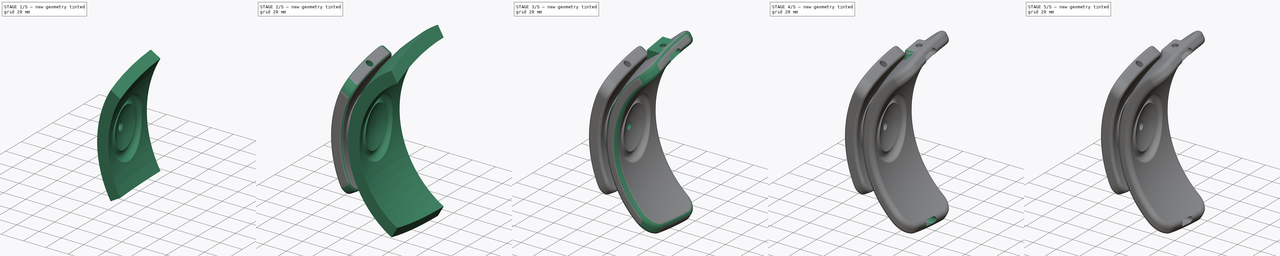
[diagram: build sequence overview — one tinted view per stage of 5, left to right]
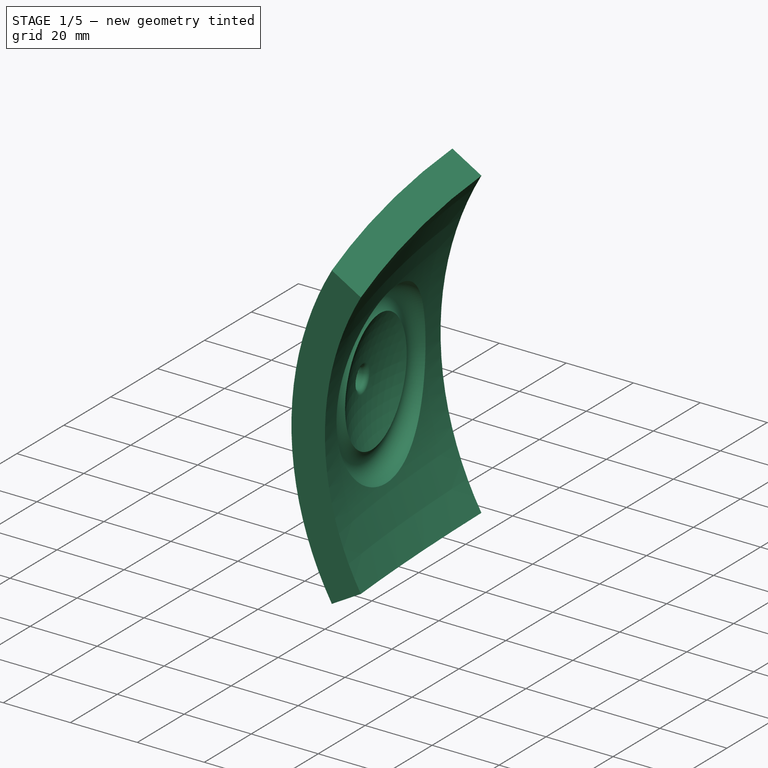
[diagram: stage 1 of 5 — iso view after this stage's code; geometry added in this stage tinted green]
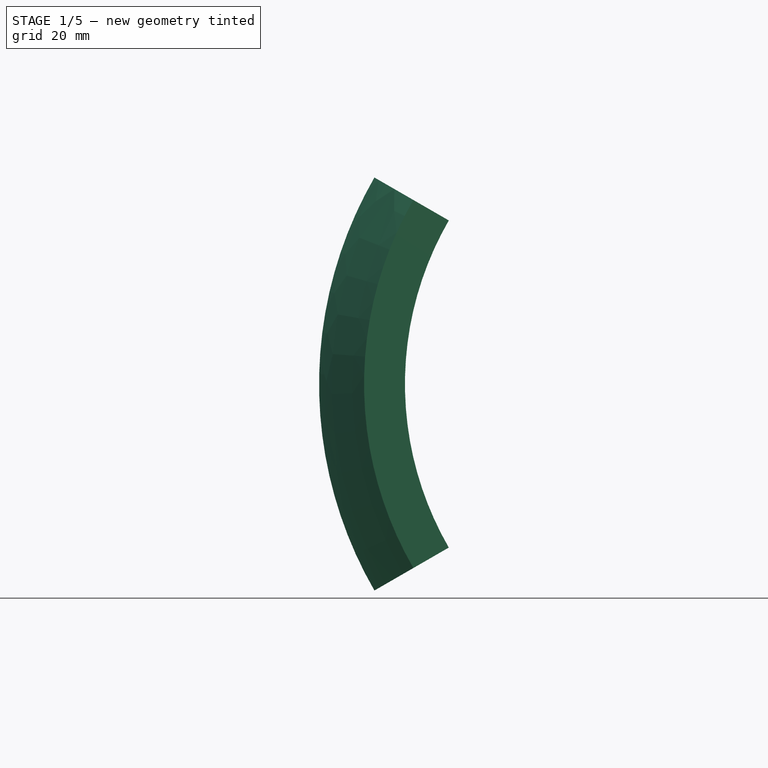
[diagram: stage 1 of 5 — front view after this stage's code; geometry added in this stage tinted green]
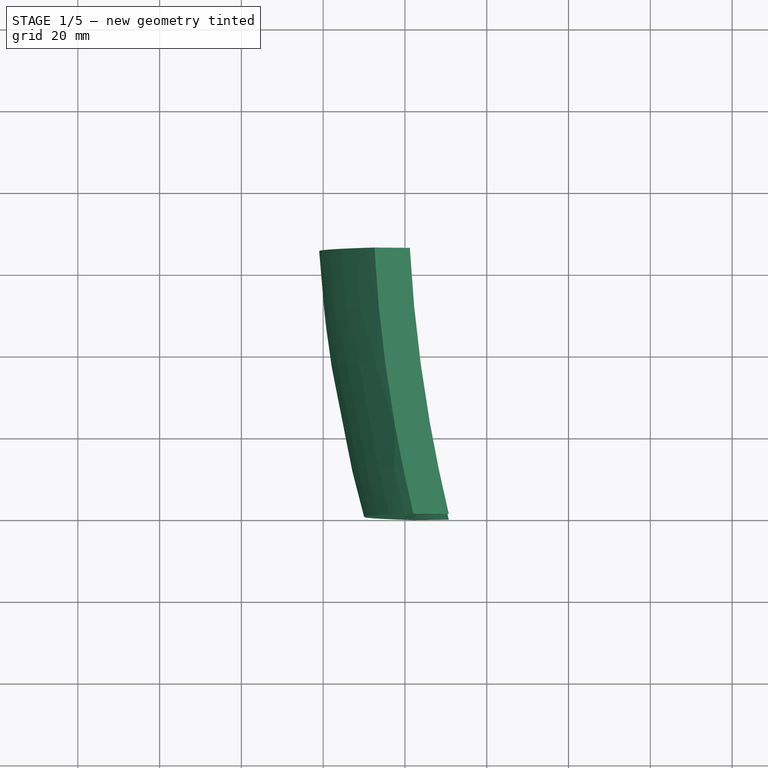
[diagram: stage 1 of 5 — top view after this stage's code; geometry added in this stage tinted green]
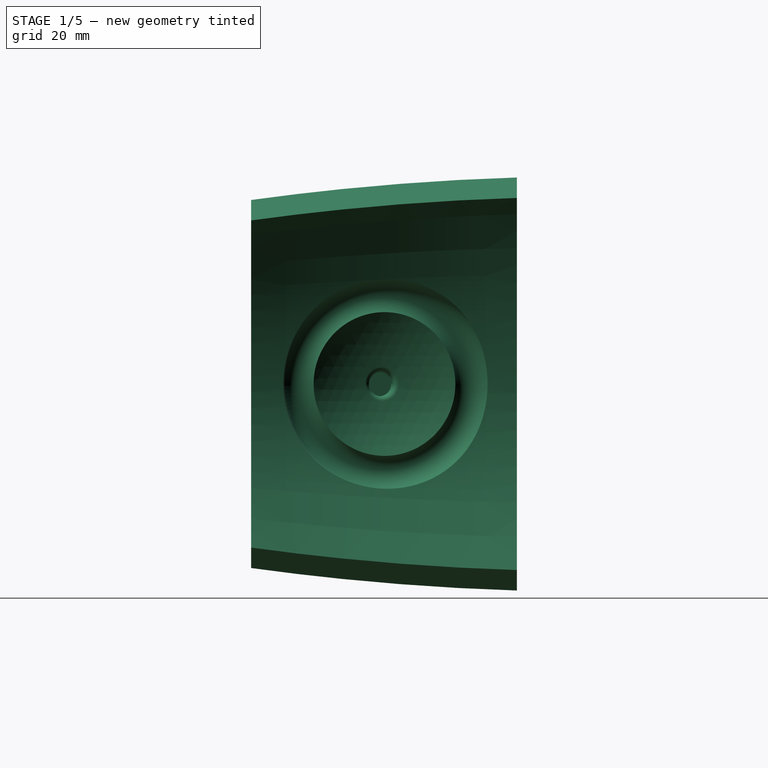
[diagram: stage 1 of 5 — right view after this stage's code; geometry added in this stage tinted green]
FCSTD DOCUMENT  (FreeCAD 0.17R13541 (Git))
Label: assist_device_assembly
License: All rights reserved
LicenseURL: http://en.wikipedia.org/wiki/All_rights_reserved
objects: PartDesign::Fillet×15, Sketcher::SketchObject×12, Part::Feature×6, PartDesign::Pocket×4, PartDesign::Mirrored×3, PartDesign::Revolution×2, PartDesign::SubtractiveSphere×2, PartDesign::SubtractiveTorus×2, PartDesign::SubtractiveCylinder×2, PartDesign::Groove×2, PartDesign::Body×2, App::Part×1, PartDesign::AdditiveLoft×1, PartDesign::SubtractiveLoft×1
note: 70 computed .brp shape members not serialized (recipe doc carries the construction recipe); baked Part::Feature solids carry a one-line shape summary decoded from their .brp

FEATURE [Sketcher::SketchObject] Sketch013
  MapMode = 5
  Support = -> [XY_Plane004]
  sketch-geometry (5):
    g0: ArcOfCircle CenterX=-95.4751 CenterY=37.2178 CenterZ=0 NormalX=0 NormalY=0 NormalZ=1 AngleXU=0 Radius=0.75 StartAngle=0.174533 EndAngle=3.31613
    g1: ArcOfCircle CenterX=-93.7386 CenterY=27.3698 CenterZ=0 NormalX=0 NormalY=0 NormalZ=1 AngleXU=0 Radius=0.75 StartAngle=3.31613 EndAngle=6.45772
    g2: LineSegment StartX=-96.2137 StartY=37.0876 StartZ=0 EndX=-94.4772 EndY=27.2395 EndZ=0
    g3: LineSegment StartX=-94.7365 StartY=37.3481 StartZ=0 EndX=-93 EndY=27.5 EndZ=0
    g4: LineSegment [constr] StartX=-13 StartY=33.8377 StartZ=0 EndX=-13 EndY=-7.32293 EndZ=0
  constraints (12):
    c: Tangent(g0,g3) = 1.5708
    c: Tangent(g0,g2) = -1.5708
    c: Tangent(g2,g1) = -1.5708
    c: Tangent(g3,g1) = 1.5708
    c: Equal(g0,g1)
    c: Angle(g-1,g3) = 1.74533
    c: Distance(g1,g0) = 10
    c: Distance(g0,g0) = 1.5
    c: DistanceX(g1,g-1) = 93
    c: DistanceY(g-1,g1) = 27.5
    c: Vertical(g4)
    c: DistanceX(g1,g4) = 80
FEATURE [Sketcher::SketchObject] Sketch014
  MapMode = 5
  Support = -> [XY_Plane004]
  sketch-geometry (14):
    g0: LineSegment StartX=-90 StartY=0 StartZ=0 EndX=-80 EndY=0 EndZ=0
    g1: LineSegment StartX=-101 StartY=65 StartZ=0 EndX=-91 EndY=65 EndZ=0
    g2: Circle [constr] CenterX=-101 CenterY=65 CenterZ=0 NormalX=0 NormalY=0 NormalZ=1 AngleXU=0 Radius=1
    g3: Circle [constr] CenterX=-99 CenterY=32.5 CenterZ=0 NormalX=0 NormalY=0 NormalZ=1 AngleXU=0 Radius=1
    g4: Circle [constr] CenterX=-90 CenterY=0 CenterZ=0 NormalX=0 NormalY=0 NormalZ=1 AngleXU=0 Radius=1
    g5: BSplineCurve PolesCount=3 KnotsCount=2 Degree=2 IsPeriodic=0
    g6: GeomPoint [constr] X=-101 Y=65 Z=0
    g7: GeomPoint [constr] X=-90 Y=0 Z=0
    g8: Circle [constr] CenterX=-91 CenterY=65 CenterZ=0 NormalX=0 NormalY=0 NormalZ=1 AngleXU=0 Radius=1
    g9: Circle [constr] CenterX=-89 CenterY=32.5 CenterZ=0 NormalX=0 NormalY=0 NormalZ=1 AngleXU=0 Radius=1
    g10: Circle [constr] CenterX=-80 CenterY=0 CenterZ=0 NormalX=0 NormalY=0 NormalZ=1 AngleXU=0 Radius=1
    g11: BSplineCurve PolesCount=3 KnotsCount=2 Degree=2 IsPeriodic=0
    g12: GeomPoint [constr] X=-91 Y=65 Z=0
    g13: GeomPoint [constr] X=-80 Y=0 Z=0
  constraints (32):
    c: Horizontal(g0)
    c: Horizontal(g1)
    c: Coincident(g2,g1)
    c: Radius(g2) = 1
    c: Equal(g2,g3)
    c: Equal(g2,g4)
    c: Coincident(g4,g0)
    c: InternalAlignment(g2,g5)
    c: InternalAlignment(g3,g5)
    c: InternalAlignment(g4,g5)
    c: InternalAlignment(g6,g5)
    c: InternalAlignment(g7,g5)
    c: Coincident(g8,g1)
    c: Radius(g8) = 1
    c: Equal(g8,g9)
    c: Equal(g8,g10)
    c: Coincident(g10,g0)
    c: InternalAlignment(g8,g11)
    c: InternalAlignment(g9,g11)
    c: InternalAlignment(g10,g11)
    c: InternalAlignment(g12,g11)
    c: InternalAlignment(g13,g11)
    c: DistanceX(g1,g1) = 10
    c: DistanceX(g0,g0) = 10
    c: DistanceY(g0,g1) = 65
    c: DistanceY(g0,g-1) = 0
    c: DistanceY(g0,g9) = 32.5
    c: DistanceY(g0,g3) = 32.5
    c: DistanceX(g0,g-1) = 80
    c: DistanceX(g3,g9) = 10
    c: DistanceX(g9,g0) = 9
    c: DistanceX(g1,g0) = 11
FEATURE [PartDesign::Revolution] Revolution002
  Angle = 60
  Axis = (0,1,0)
  Base = (0,0,0)
  Midplane = true
  Profile = -> Sketch014
  ReferenceAxis = -> Sketch014 [V_Axis]
FEATURE [PartDesign::SubtractiveSphere] Sphere002
  Angle1 = -90
  Angle2 = 90
  Angle3 = 360
  AttacherType = Attacher::AttachEngine3D
  AttachmentOffset = pos=(-50,39,0) rot=(0,0,1;0rad)
  BaseFeature = -> Revolution002
  MapMode = 2
  Placement = pos=(-50,39,0) rot=(0,0,1;0rad)
  Radius = 42
  Support = -> [X_Axis004]
FEATURE [PartDesign::SubtractiveTorus] Torus002
  Angle1 = -180
  Angle2 = 180
  Angle3 = 360
  AttacherType = Attacher::AttachEngine3D
  AttachmentOffset = pos=(0,0,4) rot=(0,0,1;0rad)
  BaseFeature = -> Sphere002
  MapMode = 45
  Placement = pos=(-84.4352,33.1626,1.03588e-05) rot=(0.512639,0.607125,0.607125;2.19418rad)
  Radius1 = 21
  Radius2 = 4.7
  Support = -> [Sphere002]
FEATURE [PartDesign::Groove] Groove002
  Angle = 29
  Axis = (0,-41.1606,0)
  Base = (-13,33.8377,0)
  BaseFeature = -> Torus002
  Placement = pos=(-84.4352,33.1626,1.03588e-05) rot=(0.512639,0.607125,0.607125;2.19418rad)
  Profile = -> Sketch013
  ReferenceAxis = -> Sketch013 [Axis0]
  Reversed = true
FEATURE [PartDesign::SubtractiveCylinder] Cylinder002
  Angle = 360
  AttacherType = Attacher::AttachEngine3D
  AttachmentOffset = pos=(0,0,-6) rot=(0,0,1;0rad)
  BaseFeature = -> Groove002
  Height = 12
  MapMode = 45
  Placement = pos=(-95.4236,31.2924,-0.000144519) rot=(0.604639,0.432958,0.66855;2.51185rad)
  Radius = 3
  Support = -> [Groove002]
FEATURE [PartDesign::Fillet] Fillet019  label="Vakuum tube"
  Base = -> Cylinder002 [Edge16]
  BaseFeature = -> Cylinder002
  Placement = pos=(-95.4236,31.2924,-0.000144519) rot=(0.604639,0.432958,0.66855;2.51185rad)
  Radius = 1.3
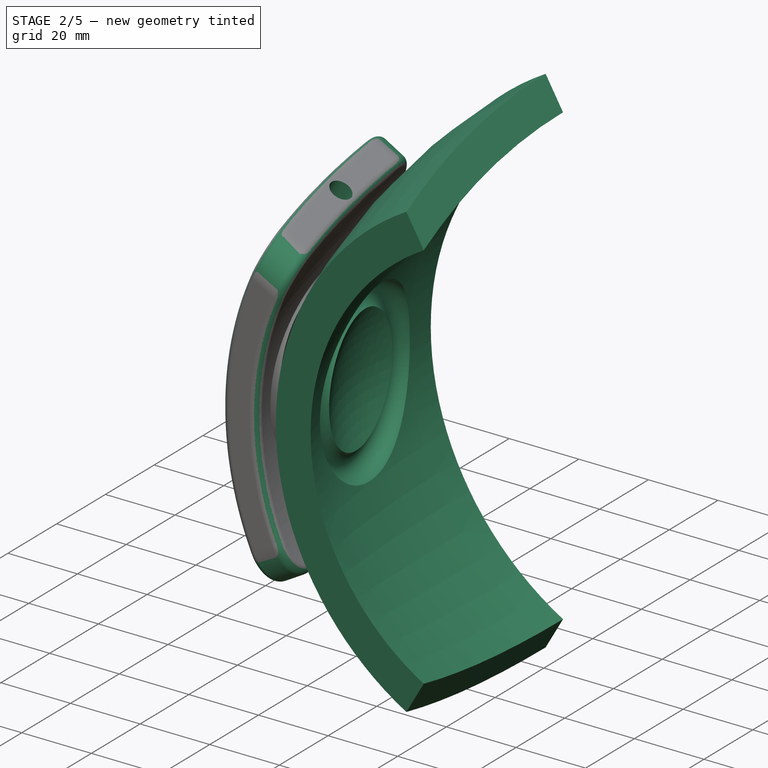
[diagram: stage 2 of 5 — iso view after this stage's code; geometry added in this stage tinted green]
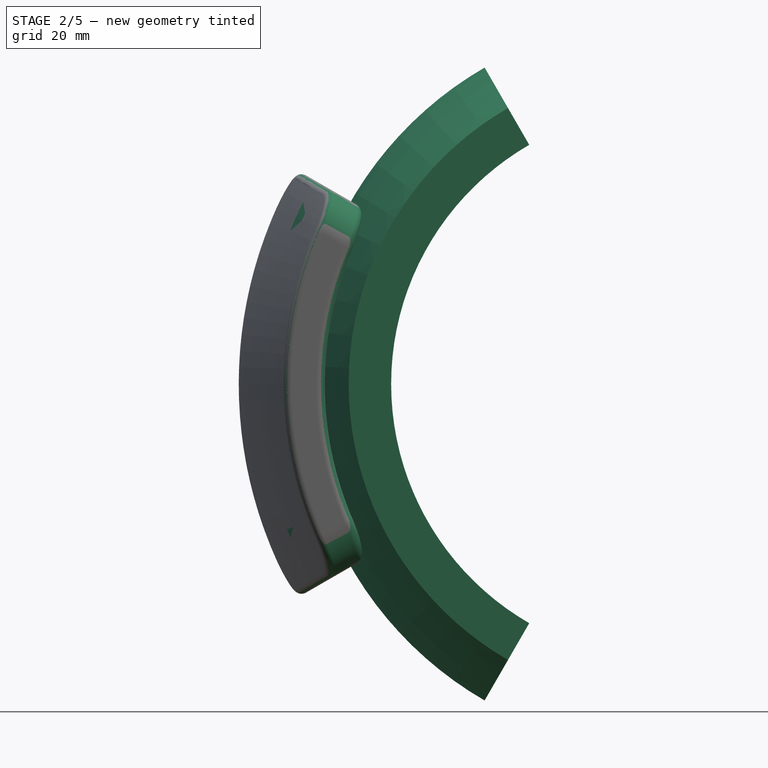
[diagram: stage 2 of 5 — front view after this stage's code; geometry added in this stage tinted green]
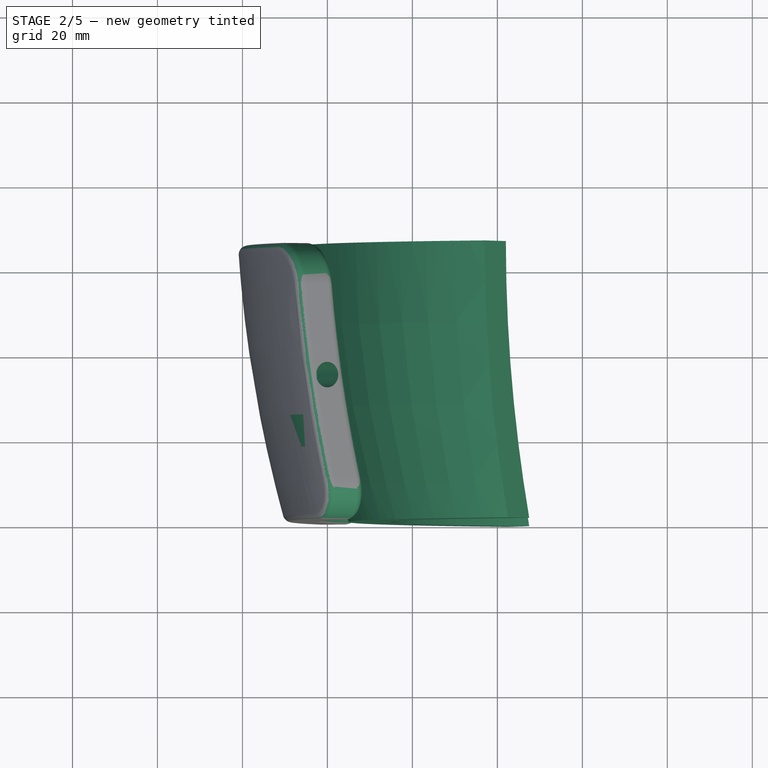
[diagram: stage 2 of 5 — top view after this stage's code; geometry added in this stage tinted green]
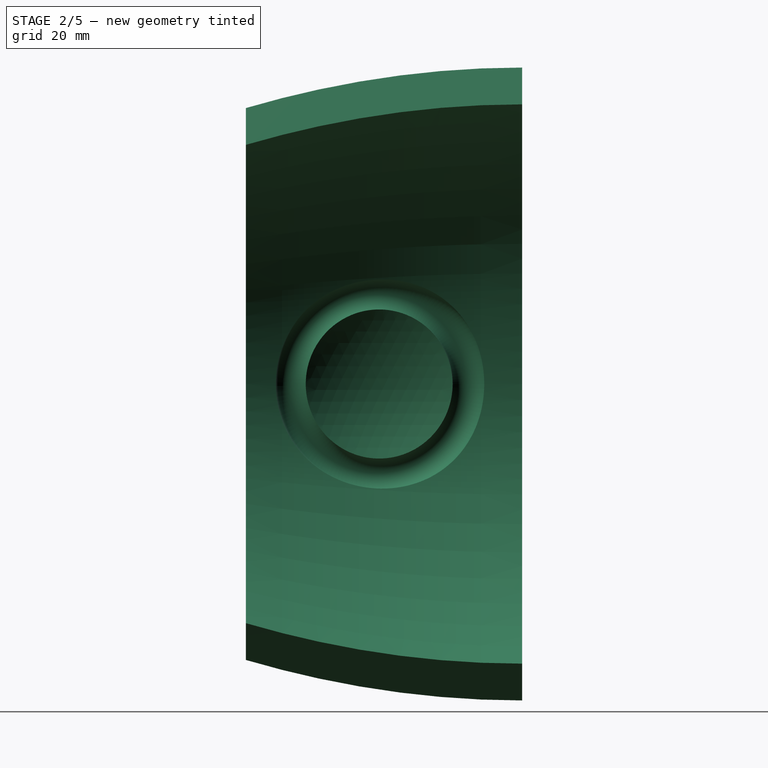
[diagram: stage 2 of 5 — right view after this stage's code; geometry added in this stage tinted green]
FEATURE [Part::Feature] Part__Feature  label="Zygote_Heart2.0_Base"
  shape: bbox 97.54 x 172.2 x 148.2 mm, 519 faces (baked)
FEATURE [Part::Feature] Part__Feature001  label="Zygote_Heart2.0_Valves"
  shape: bbox 52.32 x 92.12 x 56.26 mm, 439 faces, 0 solids (baked)
FEATURE [Part::Feature] Part__Feature002  label="Zygote_Heart2.0_Cardiac_Veins"
  shape: bbox 84.51 x 87.55 x 107.5 mm, 226 faces, 0 solids (baked)
FEATURE [Part::Feature] Part__Feature003  label="Zygote_Heart2.0_Cardiac_Veins_Ant"
  shape: bbox 15.44 x 33.99 x 39.27 mm, 20 faces, 0 solids (baked)
FEATURE [Part::Feature] Part__Feature004  label="Zygote_Heart2.0_Cor_Artery_Left"
  shape: bbox 56.88 x 94.34 x 103.3 mm, 155 faces, 0 solids (baked)
FEATURE [Part::Feature] Part__Feature005  label="Zygote_Heart2.0_Cor_Artery_Right"
  shape: bbox 72.26 x 86.17 x 92.16 mm, 130 faces, 0 solids (baked)
FEATURE [App::Part] _1775  label="Heart"
  Group = -> [Part__Feature,Part__Feature001,Part__Feature002,Part__Feature003,Part__Feature004,Part__Feature005]
  License = CC BY 3.0
  LicenseURL = http://creativecommons.org/licenses/by/3.0/
  Origin = -> Origin
  Placement = pos=(0,-902.589,-933.506) rot=(-0.790854,0.571356,0.219323;5.37942rad)
FEATURE [Sketcher::SketchObject] Sketch002
  MapMode = 5
  Placement = pos=(0,23,0) rot=(1,0,0;1.5708rad)
  sketch-geometry (5):
    g0: LineSegment StartX=-55.5 StartY=68.2 StartZ=0 EndX=-42 EndY=68.2 EndZ=0
    g1: LineSegment [constr] StartX=-42 StartY=68.2 StartZ=0 EndX=-42 EndY=50.2 EndZ=0
    g2: LineSegment [constr] StartX=-42 StartY=50.2 StartZ=0 EndX=-55.5 EndY=50.2 EndZ=0
    g3: LineSegment StartX=-55.5 StartY=50.2 StartZ=0 EndX=-55.5 EndY=68.2 EndZ=0
    g4: LineSegment StartX=-55.5 StartY=50.2 StartZ=0 EndX=-42 EndY=68.2 EndZ=0
  constraints (14):
    c: Coincident(g0,g1)
    c: Coincident(g1,g2)
    c: Coincident(g2,g3)
    c: Coincident(g3,g0)
    c: Horizontal(g0)
    c: Horizontal(g2)
    c: Vertical(g1)
    c: Vertical(g3)
    c: DistanceY(g1,g0) = 18
    c: DistanceX(g0,g0) = 13.5
    c: DistanceX(g1,g-1) = 42
    c: DistanceY(g-1,g0) = 68.2
    c: Coincident(g4,g0)
    c: Coincident(g4,g2)
FEATURE [Sketcher::SketchObject] Sketch008
  MapMode = 5
  Placement = pos=(0,0,0) rot=(0.57735,0.57735,0.57735;2.0944rad)
  Support = -> [YZ_Plane003]
  sketch-geometry (4):
    g0: ArcOfCircle CenterX=28.0189 CenterY=64 CenterZ=0 NormalX=0 NormalY=0 NormalZ=1 AngleXU=0 Radius=2.57832 StartAngle=1.71915 EndAngle=4.86074
    g1: ArcOfCircle CenterX=37.0189 CenterY=65.3451 CenterZ=0 NormalX=0 NormalY=0 NormalZ=1 AngleXU=0 Radius=2.57832 StartAngle=4.86074 EndAngle=8.00233
    g2: LineSegment StartX=28.4 StartY=61.45 StartZ=0 EndX=37.4 EndY=62.7951 EndZ=0
    g3: LineSegment StartX=27.6378 StartY=66.55 StartZ=0 EndX=36.6378 EndY=67.8951 EndZ=0
  constraints (10):
    c: Tangent(g0,g3) = 1.5708
    c: Tangent(g0,g2) = -1.5708
    c: Tangent(g2,g1) = -1.5708
    c: Tangent(g3,g1) = 1.5708
    c: Equal(g0,g1)
    c: DistanceY(g1,g1) = 5.1
    c: DistanceX(g0,g1) = 9
    c: DistanceX(g-1,g0) = 28.4
    c: DistanceY(g-1,g0) = 64
    c: Angle(g3,g-1) = -0.148353
FEATURE [Sketcher::SketchObject] Sketch
  MapMode = 5
  Support = -> [XY_Plane003]
  sketch-geometry (14):
    g0: LineSegment StartX=-75 StartY=0 StartZ=0 EndX=-65 EndY=0 EndZ=0
    g1: LineSegment StartX=-86 StartY=65 StartZ=0 EndX=-76 EndY=65 EndZ=0
    g2: Circle [constr] CenterX=-86 CenterY=65 CenterZ=0 NormalX=0 NormalY=0 NormalZ=1 AngleXU=0 Radius=1
    g3: Circle [constr] CenterX=-86 CenterY=32.5 CenterZ=0 NormalX=0 NormalY=0 NormalZ=1 AngleXU=0 Radius=1
    g4: Circle [constr] CenterX=-75 CenterY=0 CenterZ=0 NormalX=0 NormalY=0 NormalZ=1 AngleXU=0 Radius=1
    g5: BSplineCurve PolesCount=3 KnotsCount=2 Degree=2 IsPeriodic=0
    g6: GeomPoint [constr] X=-86 Y=65 Z=0
    g7: GeomPoint [constr] X=-75 Y=0 Z=0
    g8: Circle [constr] CenterX=-76 CenterY=65 CenterZ=0 NormalX=0 NormalY=0 NormalZ=1 AngleXU=0 Radius=1
    g9: Circle [constr] CenterX=-76 CenterY=32.5 CenterZ=0 NormalX=0 NormalY=0 NormalZ=1 AngleXU=0 Radius=1
    g10: Circle [constr] CenterX=-65 CenterY=0 CenterZ=0 NormalX=0 NormalY=0 NormalZ=1 AngleXU=0 Radius=1
    g11: BSplineCurve PolesCount=3 KnotsCount=2 Degree=2 IsPeriodic=0
    g12: GeomPoint [constr] X=-76 Y=65 Z=0
    g13: GeomPoint [constr] X=-65 Y=0 Z=0
  constraints (32):
    c: Horizontal(g0)
    c: Horizontal(g1)
    c: Coincident(g2,g1)
    c: Radius(g2) = 1
    c: Equal(g2,g3)
    c: Equal(g2,g4)
    c: Coincident(g4,g0)
    c: InternalAlignment(g2,g5)
    c: InternalAlignment(g3,g5)
    c: InternalAlignment(g4,g5)
    c: InternalAlignment(g6,g5)
    c: InternalAlignment(g7,g5)
    c: Coincident(g8,g1)
    c: Radius(g8) = 1
    c: Equal(g8,g9)
    c: Equal(g8,g10)
    c: Coincident(g10,g0)
    c: InternalAlignment(g8,g11)
    c: InternalAlignment(g9,g11)
    c: InternalAlignment(g10,g11)
    c: InternalAlignment(g12,g11)
    c: InternalAlignment(g13,g11)
    c: DistanceX(g1,g1) = 10
    c: DistanceX(g0,g0) = 10
    c: DistanceY(g0,g1) = 65
    c: DistanceY(g0,g-1) = 0
    c: DistanceY(g0,g9) = 32.5
    c: DistanceY(g0,g3) = 32.5
    c: DistanceX(g0,g-1) = 65
    c: DistanceX(g3,g9) = 10
    c: DistanceX(g9,g0) = 11
    c: DistanceX(g1,g0) = 11
FEATURE [PartDesign::Revolution] Revolution
  Angle = 120
  Axis = (0,1,0)
  Base = (0,0,0)
  Midplane = true
  Profile = -> Sketch
  ReferenceAxis = -> Sketch [V_Axis]
FEATURE [PartDesign::SubtractiveSphere] Sphere
  Angle1 = -90
  Angle2 = 90
  Angle3 = 360
  AttacherType = Attacher::AttachEngine3D
  AttachmentOffset = pos=(-35,38,0) rot=(0,0,1;0rad)
  BaseFeature = -> Revolution
  MapMode = 2
  Placement = pos=(-35,38,0) rot=(0,0,1;0rad)
  Radius = 42
  Support = -> [X_Axis003]
FEATURE [PartDesign::SubtractiveTorus] Torus
  Angle1 = -180
  Angle2 = 180
  Angle3 = 360
  AttacherType = Attacher::AttachEngine3D
  AttachmentOffset = pos=(0,0,3) rot=(0,0,1;0rad)
  BaseFeature = -> Sphere
  MapMode = 45
  Placement = pos=(-70.5933,31.7205,3.65171e-06) rot=(0.509935,0.608262,0.608262;2.19846rad)
  Radius1 = 21
  Radius2 = 4
  Support = -> [Sphere]
FEATURE [PartDesign::Fillet] Fillet017
  Base = -> Fillet019 [Edge34,Edge38,Edge36,Edge33]
  BaseFeature = -> Fillet019
  Placement = pos=(-95.4236,31.2924,-0.000144519) rot=(0.604639,0.432958,0.66855;2.51185rad)
  Radius = 10
FEATURE [PartDesign::Fillet] Fillet018
  Base = -> Fillet017 [Edge10,Edge1]
  BaseFeature = -> Fillet017
  Placement = pos=(-95.4236,31.2924,-0.000144519) rot=(0.604639,0.432958,0.66855;2.51185rad)
  Radius = 2
FEATURE [Sketcher::SketchObject] Sketch012
  MapMode = 5
  Placement = pos=(-63.3264,33.1626,36.5615) rot=(-0.247924,0.28709,-0.925264;1.50185rad)
  Support = -> [Groove002]
  sketch-geometry (1):
    g0: Circle CenterX=-3.55743 CenterY=-18.9889 CenterZ=0 NormalX=0 NormalY=0 NormalZ=1 AngleXU=0 Radius=3
  constraints (1):
    c: Radius(g0) = 3
FEATURE [PartDesign::Pocket] Pocket004  label="Vakuum port"
  BaseFeature = -> Fillet018
  Length = 10
  Length2 = 100
  Placement = pos=(-95.4236,31.2924,-0.000144519) rot=(0.604639,0.432958,0.66855;2.51185rad)
  Profile = -> Sketch012
  Type = 0
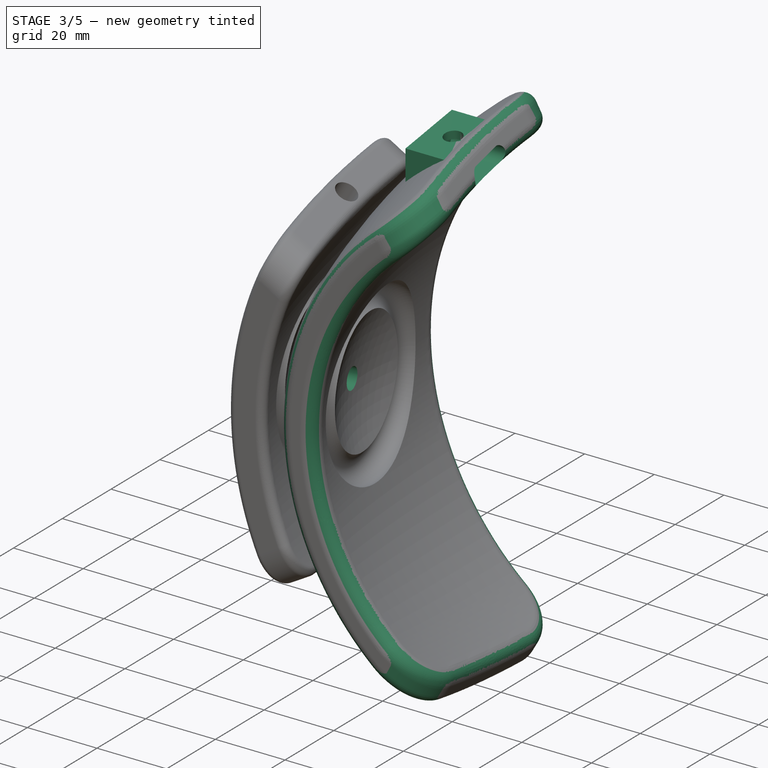
[diagram: stage 3 of 5 — iso view after this stage's code; geometry added in this stage tinted green]
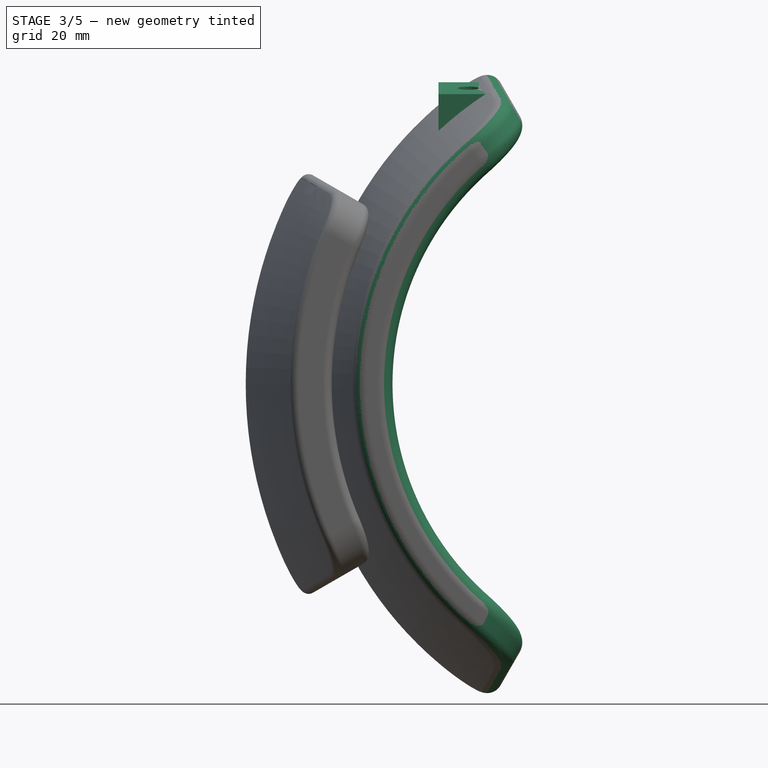
[diagram: stage 3 of 5 — front view after this stage's code; geometry added in this stage tinted green]
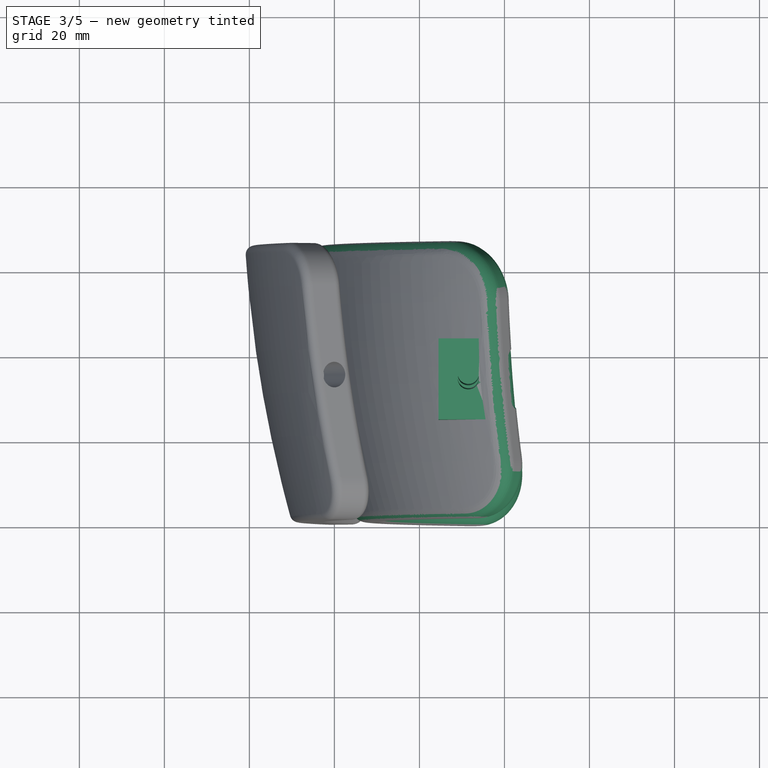
[diagram: stage 3 of 5 — top view after this stage's code; geometry added in this stage tinted green]
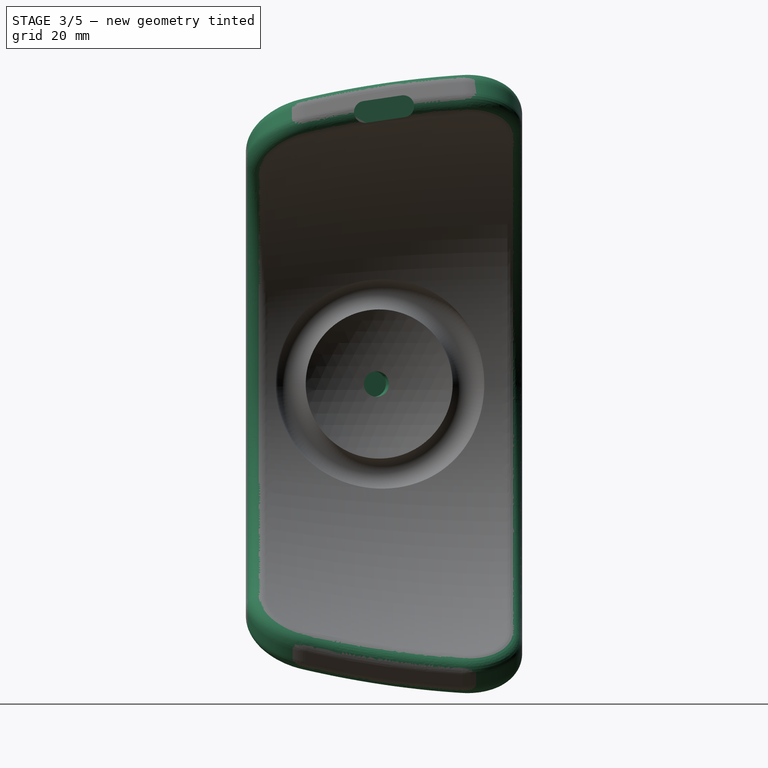
[diagram: stage 3 of 5 — right view after this stage's code; geometry added in this stage tinted green]
FEATURE [PartDesign::SubtractiveCylinder] Cylinder
  Angle = 360
  AttacherType = Attacher::AttachEngine3D
  AttachmentOffset = pos=(0,0,-6) rot=(0,0,1;0rad)
  BaseFeature = -> Torus
  Height = 12
  MapMode = 45
  Placement = pos=(-80.3774,29.9849,-0.000121889) rot=(0.589328,0.46435,0.661114;2.45976rad)
  Radius = 3
FEATURE [Sketcher::SketchObject] Sketch010
  MapMode = 5
  Placement = pos=(0,42,0) rot=(1,0,0;1.5708rad)
  sketch-geometry (5):
    g0: LineSegment StartX=-55.5 StartY=71 StartZ=0 EndX=-42 EndY=71 EndZ=0
    g1: LineSegment [constr] StartX=-42 StartY=71 StartZ=0 EndX=-42 EndY=53 EndZ=0
    g2: LineSegment [constr] StartX=-42 StartY=53 StartZ=0 EndX=-55.5 EndY=53 EndZ=0
    g3: LineSegment StartX=-55.5 StartY=53 StartZ=0 EndX=-55.5 EndY=71 EndZ=0
    g4: LineSegment StartX=-55.5 StartY=53 StartZ=0 EndX=-42 EndY=71 EndZ=0
  constraints (14):
    c: Coincident(g0,g1)
    c: Coincident(g1,g2)
    c: Coincident(g2,g3)
    c: Coincident(g3,g0)
    c: Horizontal(g0)
    c: Horizontal(g2)
    c: Vertical(g1)
    c: Vertical(g3)
    c: DistanceY(g1,g0) = 18
    c: DistanceX(g0,g0) = 13.5
    c: DistanceX(g1,g-1) = 42
    c: DistanceY(g-1,g0) = 71
    c: Coincident(g4,g0)
    c: Coincident(g4,g2)
FEATURE [Sketcher::SketchObject] Sketch001
  MapMode = 5
  Support = -> [XY_Plane003]
  sketch-geometry (5):
    g0: ArcOfCircle CenterX=-81.2751 CenterY=37.2178 CenterZ=0 NormalX=0 NormalY=0 NormalZ=1 AngleXU=0 Radius=0.75 StartAngle=0.174533 EndAngle=3.31613
    g1: ArcOfCircle CenterX=-79.5386 CenterY=27.3698 CenterZ=0 NormalX=0 NormalY=0 NormalZ=1 AngleXU=0 Radius=0.75 StartAngle=3.31613 EndAngle=6.45772
    g2: LineSegment StartX=-82.0137 StartY=37.0876 StartZ=0 EndX=-80.2772 EndY=27.2395 EndZ=0
    g3: LineSegment StartX=-80.5365 StartY=37.3481 StartZ=0 EndX=-78.8 EndY=27.5 EndZ=0
    g4: LineSegment [constr] StartX=11.2 StartY=33.8377 StartZ=0 EndX=11.2 EndY=-7.32293 EndZ=0
  constraints (12):
    c: Tangent(g0,g3) = 1.5708
    c: Tangent(g0,g2) = -1.5708
    c: Tangent(g2,g1) = -1.5708
    c: Tangent(g3,g1) = 1.5708
    c: Equal(g0,g1)
    c: Angle(g-1,g3) = 1.74533
    c: Distance(g1,g0) = 10
    c: Distance(g0,g0) = 1.5
    c: DistanceX(g1,g-1) = 78.8
    c: DistanceY(g-1,g1) = 27.5
    c: Vertical(g4)
    c: DistanceX(g1,g4) = 90
FEATURE [PartDesign::Fillet] Fillet
  Base = -> Cylinder [Edge7,Edge10,Edge6,Edge9]
  BaseFeature = -> Cylinder
  Placement = pos=(-80.3774,29.9849,-0.000121889) rot=(0.589328,0.46435,0.661114;2.45976rad)
  Radius = 14
FEATURE [PartDesign::Fillet] Fillet001
  Base = -> Fillet [Edge11,Edge1]
  BaseFeature = -> Fillet
  Placement = pos=(-80.3774,29.9849,-0.000121889) rot=(0.589328,0.46435,0.661114;2.45976rad)
  Radius = 3.5
FEATURE [PartDesign::AdditiveLoft] AdditiveLoft
  BaseFeature = -> Fillet001
  Closed = false
  Placement = pos=(-80.3774,29.9849,-0.000121889) rot=(0.589328,0.46435,0.661114;2.45976rad)
  Profile = -> Sketch002
  Ruled = false
  Sections = -> [Sketch010]
FEATURE [PartDesign::Pocket] Pocket
  BaseFeature = -> AdditiveLoft
  Length = 54
  Length2 = 100
  Placement = pos=(-80.3774,29.9849,-0.000121889) rot=(0.589328,0.46435,0.661114;2.45976rad)
  Profile = -> Sketch008
  Type = 0
FEATURE [Sketcher::SketchObject] Sketch007
  ExternalGeometry = -> [Pocket]
  MapMode = 5
  Placement = pos=(-80.3774,19.9996,67.7578) rot=(0.086043,0.072821,-0.993627;1.41104rad)
  Support = -> [Pocket]
  sketch-geometry (2):
    g0: Circle CenterX=-7.19048 CenterY=33.5376 CenterZ=0 NormalX=0 NormalY=0 NormalZ=1 AngleXU=0 Radius=2.5
    g1: Circle [constr] CenterX=-7.19048 CenterY=33.5376 CenterZ=0 NormalX=0 NormalY=0 NormalZ=1 AngleXU=0 Radius=9.6026
  constraints (5):
    c: Radius(g0) = 2.5
    c: Coincident(g1,g0)
    c: Tangent(g-4,g1)
    c: Tangent(g1,g-3)
    c: DistanceY(g0,g-4) = 4
FEATURE [PartDesign::Pocket] Pocket003
  BaseFeature = -> Pocket
  Length = 10.1
  Length2 = 100
  Placement = pos=(-80.3774,29.9849,-0.000121889) rot=(0.589328,0.46435,0.661114;2.45976rad)
  Profile = -> Sketch007
  Type = 0
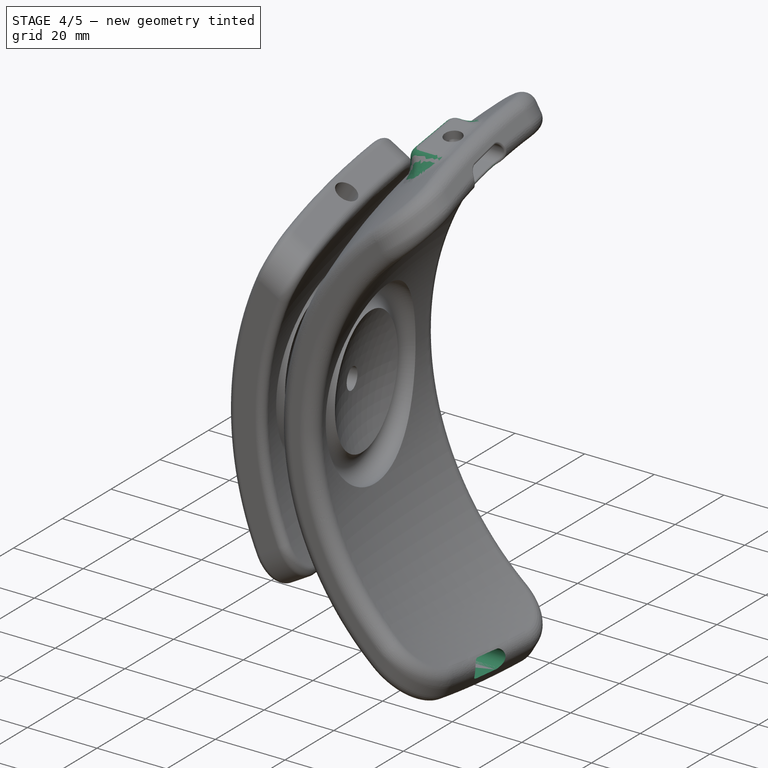
[diagram: stage 4 of 5 — iso view after this stage's code; geometry added in this stage tinted green]
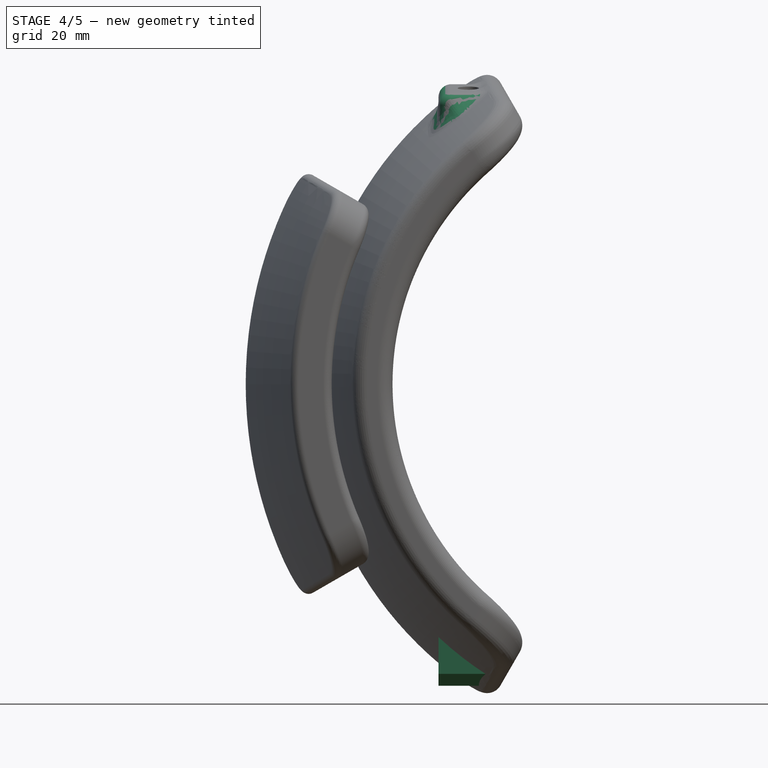
[diagram: stage 4 of 5 — front view after this stage's code; geometry added in this stage tinted green]
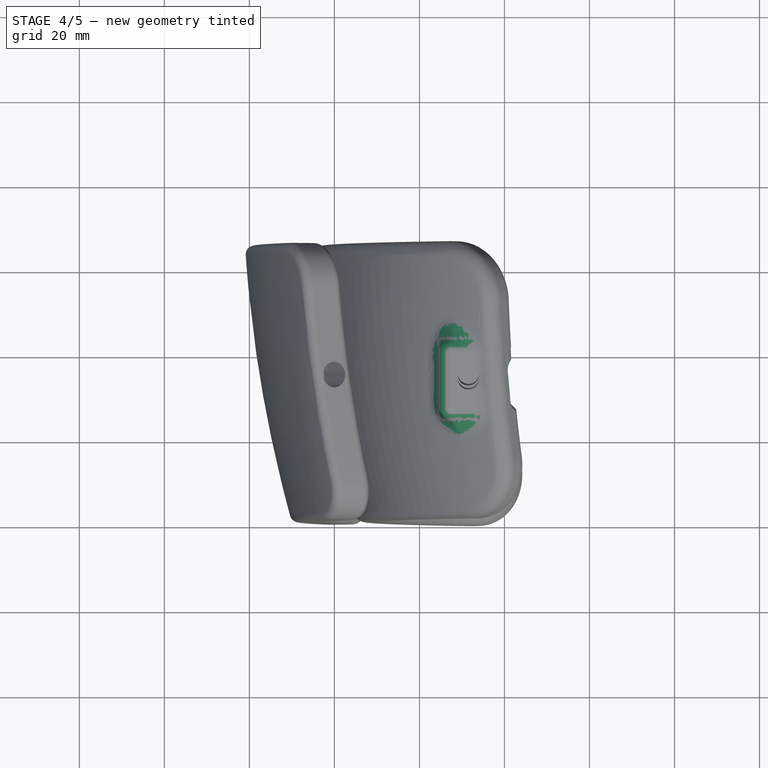
[diagram: stage 4 of 5 — top view after this stage's code; geometry added in this stage tinted green]
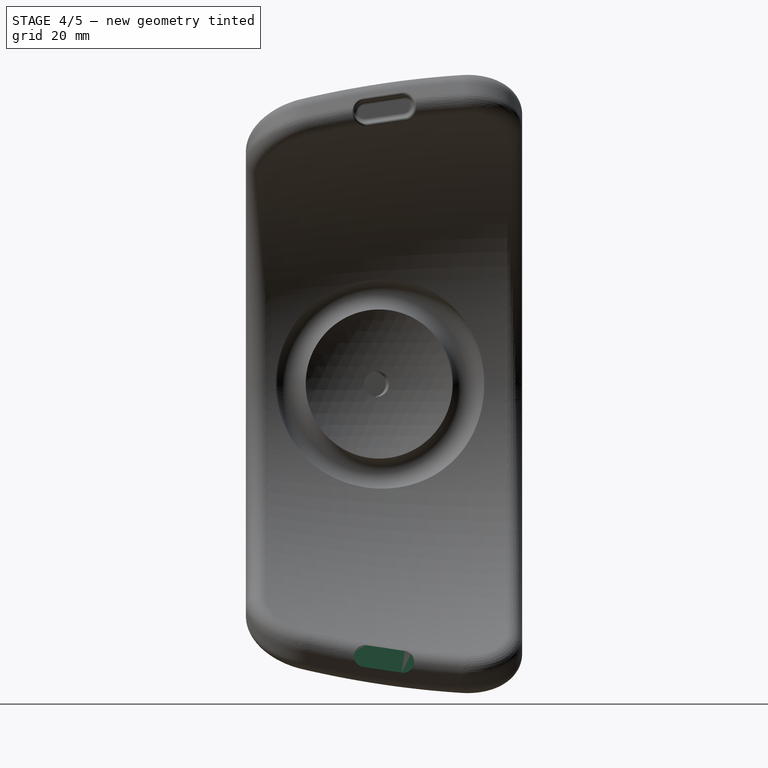
[diagram: stage 4 of 5 — right view after this stage's code; geometry added in this stage tinted green]
FEATURE [PartDesign::Fillet] Fillet002
  Base = -> Pocket003 [Edge77]
  BaseFeature = -> Pocket003
  Placement = pos=(-80.3774,29.9849,-0.000121889) rot=(0.589328,0.46435,0.661114;2.45976rad)
  Radius = 1
FEATURE [PartDesign::Fillet] Fillet016
  Base = -> Fillet002 [Edge57,Edge88,Edge89,Edge58,Edge59]
  BaseFeature = -> Fillet002
  Placement = pos=(-80.3774,29.9849,-0.000121889) rot=(0.589328,0.46435,0.661114;2.45976rad)
  Radius = 3
FEATURE [PartDesign::Fillet] Fillet014
  Base = -> Fillet016 [Edge9]
  BaseFeature = -> Fillet016
  Placement = pos=(-80.3774,29.9849,-0.000121889) rot=(0.589328,0.46435,0.661114;2.45976rad)
  Radius = 8
FEATURE [PartDesign::Fillet] Fillet013
  Base = -> Fillet014 [Edge88]
  BaseFeature = -> Fillet014
  Placement = pos=(-80.3774,29.9849,-0.000121889) rot=(0.589328,0.46435,0.661114;2.45976rad)
  Radius = 0.5
FEATURE [PartDesign::Mirrored] Mirrored
  BaseFeature = -> Fillet013
  MirrorPlane = -> XY_Plane003
  Originals = -> [AdditiveLoft]
  Placement = pos=(-80.3774,29.9849,-0.000121889) rot=(0.589328,0.46435,0.661114;2.45976rad)
FEATURE [PartDesign::Mirrored] Mirrored001
  BaseFeature = -> Mirrored
  MirrorPlane = -> XY_Plane003
  Originals = -> [Pocket]
  Placement = pos=(-80.3774,29.9849,-0.000121889) rot=(0.589328,0.46435,0.661114;2.45976rad)
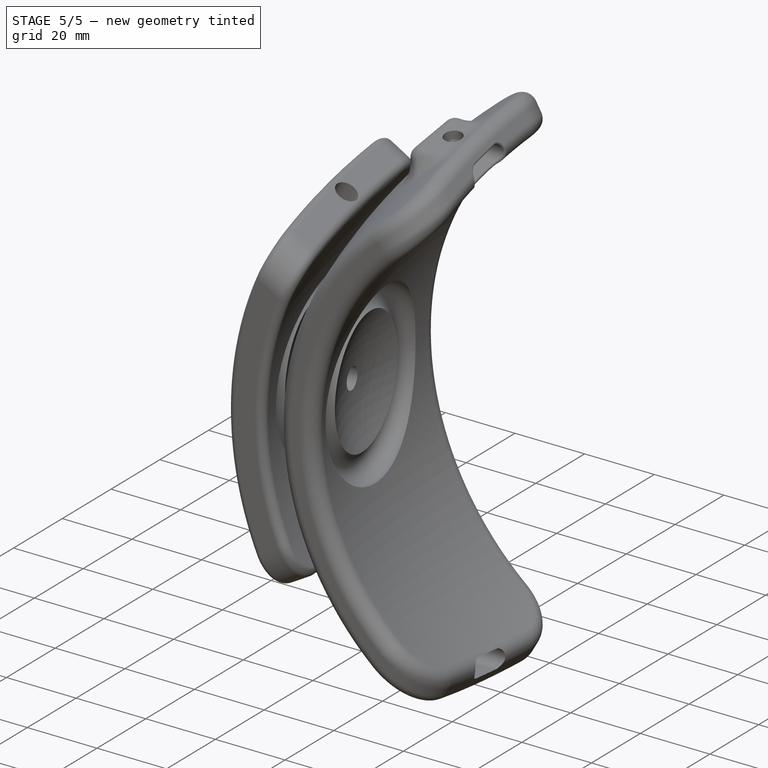
[diagram: stage 5 of 5 — iso view after this stage's code; geometry added in this stage tinted green]
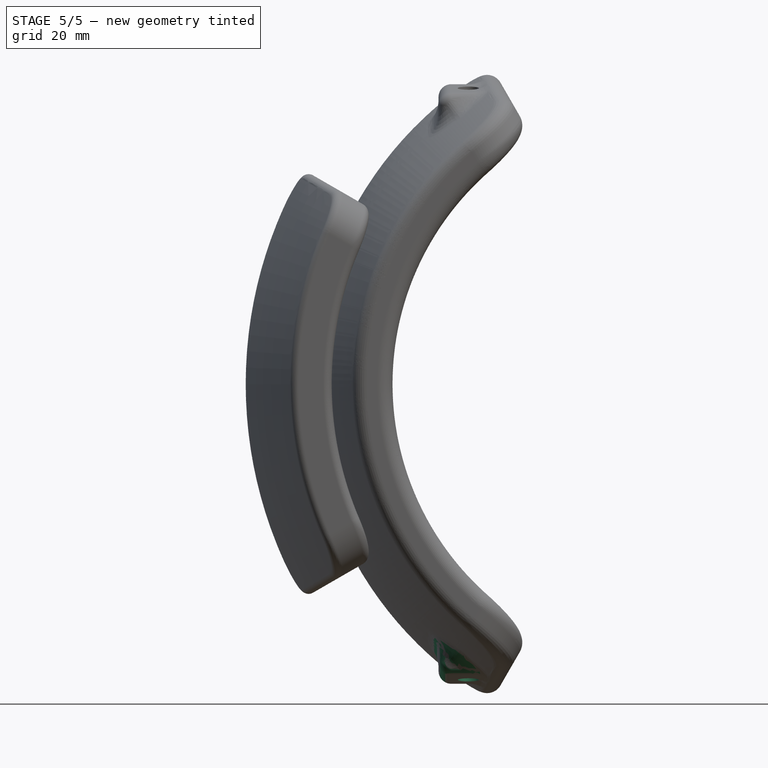
[diagram: stage 5 of 5 — front view after this stage's code; geometry added in this stage tinted green]
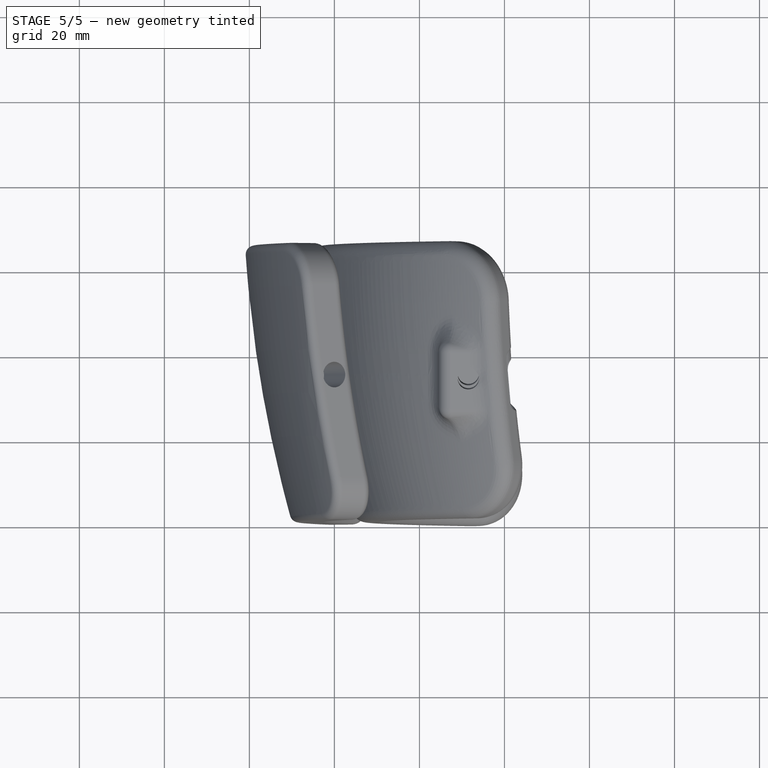
[diagram: stage 5 of 5 — top view after this stage's code; geometry added in this stage tinted green]
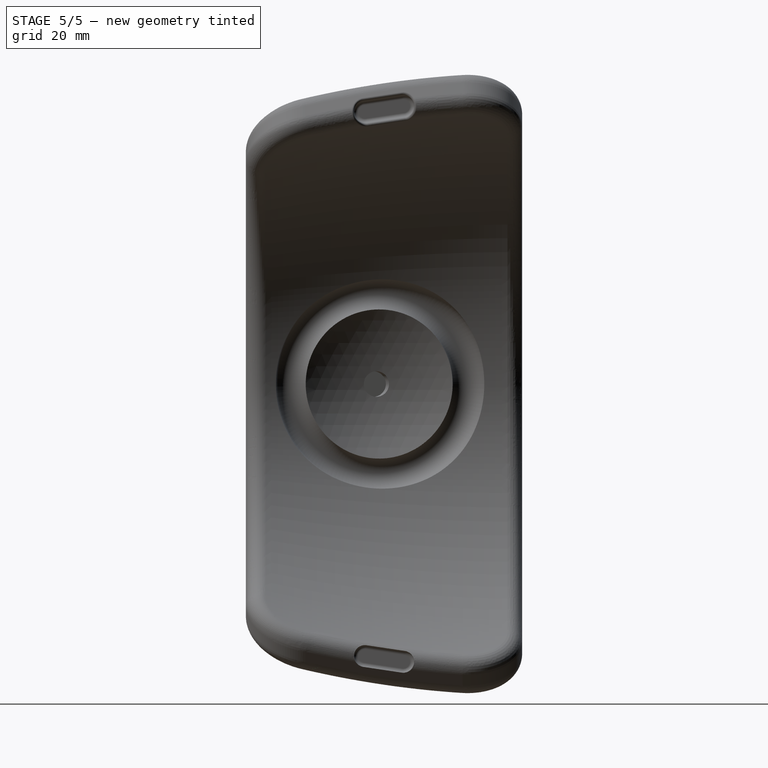
[diagram: stage 5 of 5 — right view after this stage's code; geometry added in this stage tinted green]
FEATURE [PartDesign::Mirrored] Mirrored002
  BaseFeature = -> Mirrored001
  MirrorPlane = -> XY_Plane003
  Originals = -> [Pocket003]
  Placement = pos=(-80.3774,29.9849,-0.000121889) rot=(0.589328,0.46435,0.661114;2.45976rad)
FEATURE [PartDesign::Fillet] Fillet011
  Base = -> Mirrored002 [Edge184,Edge182,Edge181,Edge180,Edge179]
  BaseFeature = -> Mirrored002
  Placement = pos=(-80.3774,29.9849,-0.000121889) rot=(0.589328,0.46435,0.661114;2.45976rad)
  Radius = 3
FEATURE [PartDesign::Body] Body002
  Group = -> [Sketch014,Revolution002,Sphere002,Torus002,Sketch013,Groove002,Sketch012,Cylinder002,Fillet019,Fillet017,Fillet018,Pocket004]
  Origin = -> Origin004
  Placement = pos=(-44,-1,0) rot=(0,1,0;3.14159rad)
  Tip = -> Pocket004
FEATURE [Sketcher::SketchObject] Sketch006
  MapMode = 5
  Placement = pos=(-20.0944,29.9849,-34.8045) rot=(0.726941,0.543515,0.4197;2.53346rad)
  Support = -> [Groove]
  sketch-geometry (1):
    g0: Circle CenterX=-23.3883 CenterY=-28.819 CenterZ=0 NormalX=0 NormalY=0 NormalZ=1 AngleXU=0 Radius=3
  constraints (1):
    c: Radius(g0) = 3
FEATURE [PartDesign::Fillet] Fillet012
  Base = -> Fillet010 [Edge84]
  BaseFeature = -> Fillet010
  Placement = pos=(-80.3774,29.9849,-0.000121889) rot=(0.589328,0.46435,0.661114;2.45976rad)
  Radius = 1
FEATURE [PartDesign::Body] Body
  Group = -> [Sketch,Revolution,Sphere,Torus,Sketch001,Cylinder,Sketch002,Fillet,Fillet001,Sketch008,Sketch010,AdditiveLoft,Pocket,Sketch007,Pocket003,Fillet002,Fillet016,Fillet014,Fillet013,Mirrored,Mirrored001,Mirrored002,Fillet011,Fillet012,Fillet008,Fillet009,Fillet010,Fillet015,Groove,Sketch006,Pocket002,Sketch011,Sketch009,SubtractiveLoft]
  Origin = -> Origin003
  Tip = -> SubtractiveLoft
FEATURE [PartDesign::Groove] Groove
  Angle = 25
  Axis = (0,1,0)
  Base = (0,0,0)
  BaseFeature = -> Fillet015
  Placement = pos=(-80.3774,29.9849,-0.000121889) rot=(0.589328,0.46435,0.661114;2.45976rad)
  Profile = -> Sketch001
  ReferenceAxis = -> Sketch001 [V_Axis]
  Reversed = true
FEATURE [PartDesign::SubtractiveLoft] SubtractiveLoft
  BaseFeature = -> Pocket002
  Closed = false
  Placement = pos=(-80.3774,29.9849,-0.000121889) rot=(0.589328,0.46435,0.661114;2.45976rad)
  Profile = -> Sketch009
  Ruled = false
  Sections = -> [Sketch011]
FEATURE [Sketcher::SketchObject] Sketch009
  MapMode = 5
  Placement = pos=(-66.0215,29.9849,-30.7863) rot=(0.21179,-0.206164,-0.955323;1.64336rad)
  Support = -> [Pocket002]
  sketch-geometry (5):
    g0: Ellipse CenterX=-2.07598 CenterY=-7.7143 CenterZ=0 NormalX=0 NormalY=0 NormalZ=1 MajorRadius=4.35567 MinorRadius=0.871402 AngleXU=-2.94182
    g1: LineSegment [constr] StartX=-6.34502 StartY=-8.57866 StartZ=0 EndX=2.19306 EndY=-6.84994 EndZ=0
    g2: LineSegment [constr] StartX=-1.90305 StartY=-8.56838 StartZ=0 EndX=-2.2489 EndY=-6.86023 EndZ=0
    g3: GeomPoint X=-6.25871 Y=-8.56119 Z=0
    g4: GeomPoint X=2.10676 Y=-6.86742 Z=0
  constraints (1):
    c: InternalAlignment(g1-g4 -> g0) x4
FEATURE [PartDesign::Pocket] Pocket002
  BaseFeature = -> Groove
  Length = 9
  Length2 = 100
  Placement = pos=(-80.3774,29.9849,-0.000121889) rot=(0.589328,0.46435,0.661114;2.45976rad)
  Profile = -> Sketch006
  Type = 0
FEATURE [Sketcher::SketchObject] Sketch011
  ExternalGeometry = -> [Pocket002]
  MapMode = 5
  Placement = pos=(-27.8886,29.9849,-30.3045) rot=(0.726941,0.543515,0.4197;2.53346rad)
  Support = -> [Pocket002]
  sketch-geometry (1):
    g0: Circle CenterX=-23.3883 CenterY=-28.819 CenterZ=0 NormalX=0 NormalY=0 NormalZ=1 AngleXU=0 Radius=2
  constraints (2):
    c: Coincident(g0,g-3)
    c: Radius(g0) = 2
FEATURE [PartDesign::Fillet] Fillet015
  Base = -> Fillet010 [Edge70]
  BaseFeature = -> Fillet010
  Placement = pos=(-80.3774,29.9849,-0.000121889) rot=(0.589328,0.46435,0.661114;2.45976rad)
  Radius = 1
FEATURE [PartDesign::Fillet] Fillet008
  Base = -> Fillet012
  BaseFeature = -> Fillet012
  Placement = pos=(-80.3774,29.9849,-0.000121889) rot=(0.589328,0.46435,0.661114;2.45976rad)
  Radius = 8
FEATURE [PartDesign::Fillet] Fillet009
  Base = -> Fillet008 [Edge151]
  BaseFeature = -> Fillet008
  Placement = pos=(-80.3774,29.9849,-0.000121889) rot=(0.589328,0.46435,0.661114;2.45976rad)
  Radius = 0.5
FEATURE [PartDesign::Fillet] Fillet010
  Base = -> Fillet009 [Edge200]
  BaseFeature = -> Fillet009
  Placement = pos=(-80.3774,29.9849,-0.000121889) rot=(0.589328,0.46435,0.661114;2.45976rad)
  Radius = 1.5
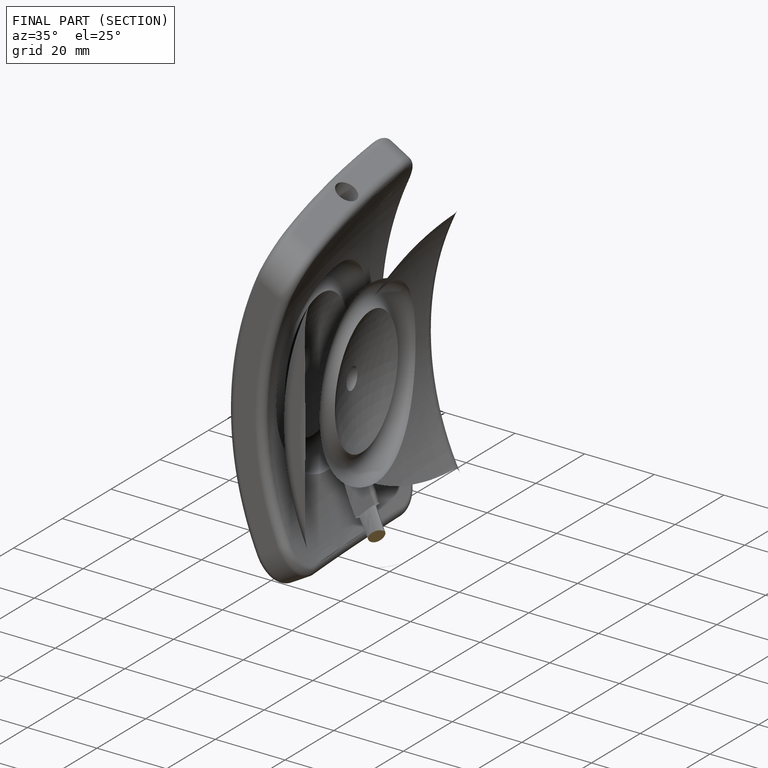
[diagram: finished part — half-section view (interior)]
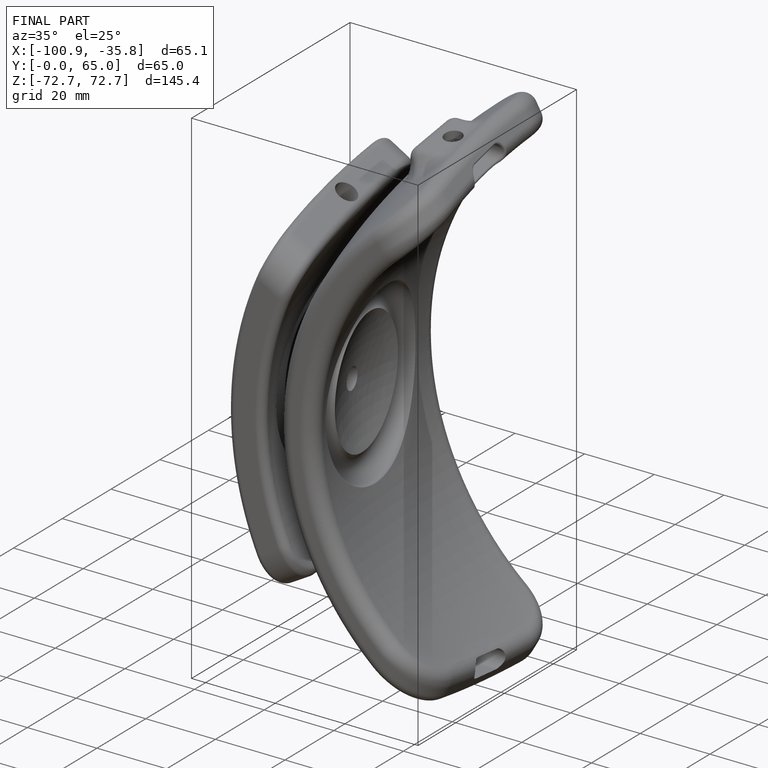
[diagram: finished part — iso view with bounding-box wireframe]
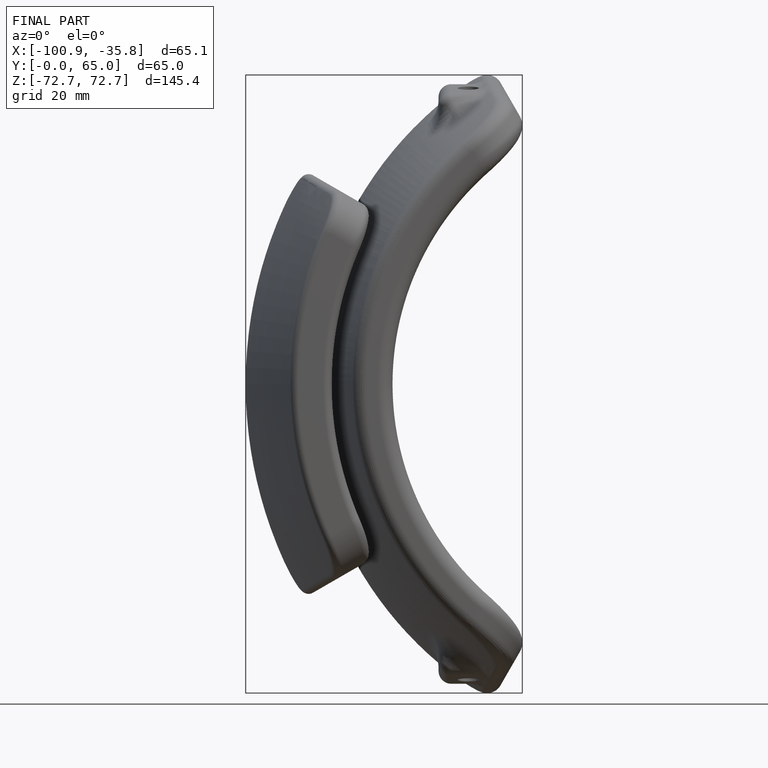
[diagram: finished part — front view with bounding-box wireframe]
